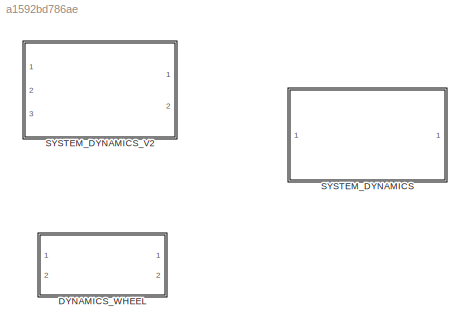
MODEL slx_a1592bd786ae
KIND library
CONFIG AbsTol = auto
CONFIG EnableMultiTasking = off
CONFIG FixedStep = auto
CONFIG MaxStep = auto
CONFIG MinStep = auto
CONFIG RelTol = 1e-3
CONFIG SampleTimeConstraint = Unconstrained
CONFIG SolverName = VariableStepAuto
CONFIG StartTime = 0.0
CONFIG StopTime = 10.0
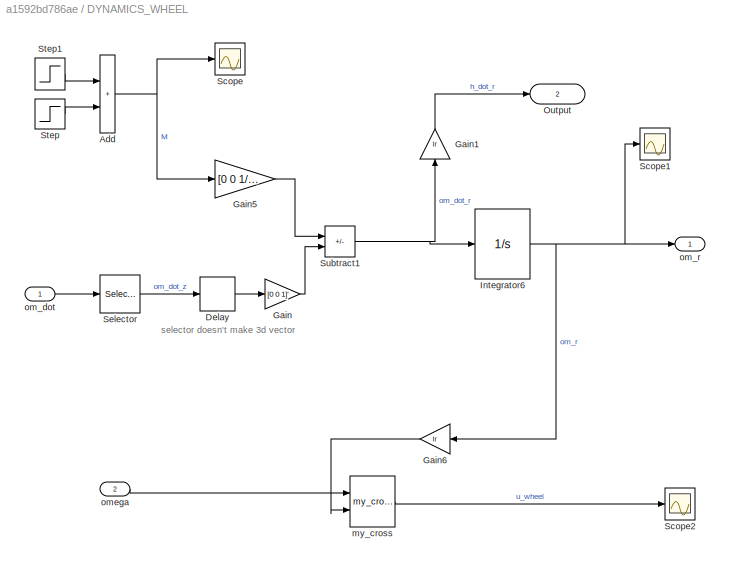
BLOCK [SubSystem] DYNAMICS_WHEEL
  Ports = [2, 2]
  RequestExecContextInheritance = off
BLOCK [Sum] DYNAMICS_WHEEL/Add
  IconShape = rectangular
  Ports = [2, 1]
BLOCK [Delay] DYNAMICS_WHEEL/Delay
  DelayLength = 1
  InputPortMap = u0
  Ports = [1, 1]
BLOCK [Gain] DYNAMICS_WHEEL/Gain
  Gain = [0 0 1]'
BLOCK [Gain] DYNAMICS_WHEEL/Gain1
  Gain = Ir
  NameLocation = right
BLOCK [Gain] DYNAMICS_WHEEL/Gain5
  Gain = [0 0 1/Ir]'
BLOCK [Gain] DYNAMICS_WHEEL/Gain6
  Gain = Ir
BLOCK [Integrator] DYNAMICS_WHEEL/Integrator6
  InitialCondition = [0 0 0]'
  Ports = [1, 1]
BLOCK [Outport] DYNAMICS_WHEEL/Output
  IconDisplay = Signal name
  Port = 2
BLOCK [Scope] DYNAMICS_WHEEL/Scope
  Floating = off
  NumInputPorts = 1
  Ports = [1]
  ScopeSpecificationString = Simulink.scopes.TimeScopeBlockCfg('CurrentConfiguration', extmgr.ConfigurationSet(extmgr.Configuration('Core','General UI',true),extmgr.Configuration('Core','Source UI',true),extmgr.Configuration('Sources','WiredSimulink',true,'DataLoggingVariableName','ScopeData2'),extmgr.Configuration('Visuals','Time Domain',true,'SerializedDisplays',{struct('MinYLimReal','-0.00005','MaxYLimReal','0.00045','YLab...<+1388ch>
BLOCK [Scope] DYNAMICS_WHEEL/Scope1
  Floating = off
  NumInputPorts = 1
  Ports = [1]
  ScopeSpecificationString = Simulink.scopes.TimeScopeBlockCfg('CurrentConfiguration', extmgr.ConfigurationSet(extmgr.Configuration('Core','General UI',true),extmgr.Configuration('Core','Source UI',true),extmgr.Configuration('Sources','WiredSimulink',true,'DataLoggingVariableName','ScopeData3'),extmgr.Configuration('Visuals','Time Domain',true,'SerializedDisplays',{struct('MinYLimReal','-0.05551','MaxYLimReal','0.49956','YLab...<+1451ch>
BLOCK [Scope] DYNAMICS_WHEEL/Scope2
  Floating = off
  NumInputPorts = 1
  Ports = [1]
  ScopeSpecificationString = Simulink.scopes.TimeScopeBlockCfg('CurrentConfiguration', extmgr.ConfigurationSet(extmgr.Configuration('Core','General UI',true),extmgr.Configuration('Core','Source UI',true),extmgr.Configuration('Sources','WiredSimulink',true,'DataLoggingVariableName','ScopeData1'),extmgr.Configuration('Visuals','Time Domain',true,'SerializedDisplays',{struct('MinYLimReal','-0.0000004','MaxYLimReal','0.0000004','...<+1479ch>
BLOCK [Selector] DYNAMICS_WHEEL/Selector
  IndexOptions = Index vector (dialog)
  Indices = 3
  InputPortWidth = 3
  OutputSizes = 1
  Ports = [1, 1]
BLOCK [Step] DYNAMICS_WHEEL/Step
  After = -T_w
  SampleTime = 0
  Time = 255
BLOCK [Step] DYNAMICS_WHEEL/Step1
  After = T_w
  SampleTime = 0
  Time = 250
BLOCK [Sum] DYNAMICS_WHEEL/Subtract1
  IconShape = rectangular
  Inputs = +-
  Ports = [2, 1]
BLOCK [Reference] DYNAMICS_WHEEL/my_cross  REF=my_math_ops/my_cross  (lib defined in slx_67cfba16120e)
  Ports = [2, 1]
  SourceBlock = my_math_ops/my_cross
  SourceType = SubSystem
BLOCK [Inport] DYNAMICS_WHEEL/om_dot
BLOCK [Outport] DYNAMICS_WHEEL/om_r
BLOCK [Inport] DYNAMICS_WHEEL/omega
  Port = 2
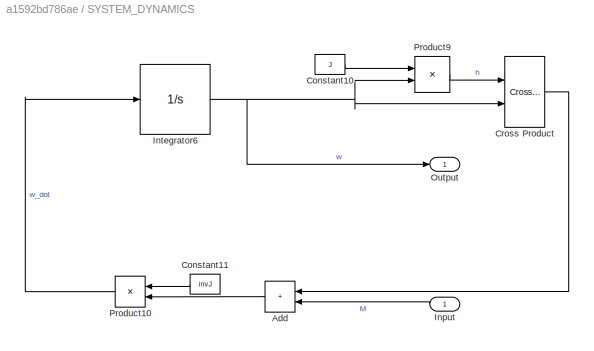
BLOCK [SubSystem] SYSTEM_DYNAMICS
  Ports = [1, 1]
  RequestExecContextInheritance = off
BLOCK [Sum] SYSTEM_DYNAMICS/Add
  IconShape = rectangular
  Ports = [2, 1]
BLOCK [Constant] SYSTEM_DYNAMICS/Constant10
  Value = J
BLOCK [Constant] SYSTEM_DYNAMICS/Constant11
  Value = invJ
BLOCK [Reference] SYSTEM_DYNAMICS/Cross Product  REF=matrix_library/Cross Product
  Ports = [2, 1]
  SourceBlock = matrix_library/Cross Product
  SourceProductBaseCode = SL
  SourceType = CrossProduct
BLOCK [Inport] SYSTEM_DYNAMICS/Input
  IconDisplay = Signal name
BLOCK [Integrator] SYSTEM_DYNAMICS/Integrator6
  InitialCondition = omega0
  Ports = [1, 1]
BLOCK [Outport] SYSTEM_DYNAMICS/Output
  IconDisplay = Signal name
BLOCK [Product] SYSTEM_DYNAMICS/Product10
  Multiplication = Matrix(*)
  Ports = [2, 1]
BLOCK [Product] SYSTEM_DYNAMICS/Product9
  Multiplication = Matrix(*)
  Ports = [2, 1]
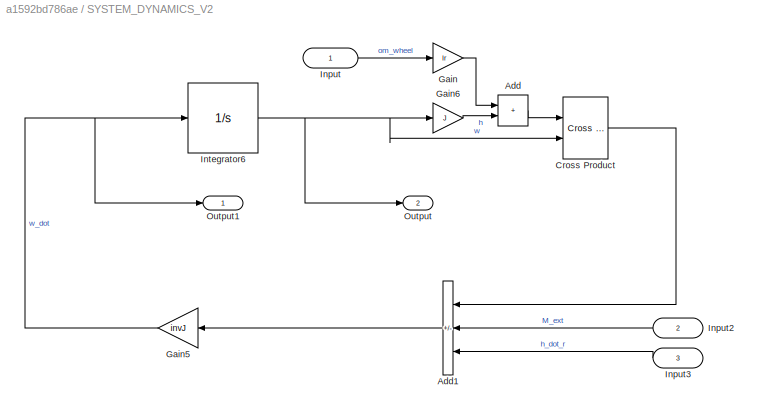
BLOCK [SubSystem] SYSTEM_DYNAMICS_V2
  Ports = [3, 2]
  RequestExecContextInheritance = off
BLOCK [Sum] SYSTEM_DYNAMICS_V2/Add
  IconShape = rectangular
  Ports = [2, 1]
BLOCK [Sum] SYSTEM_DYNAMICS_V2/Add1
  IconShape = rectangular
  Inputs = ++-
  Ports = [3, 1]
BLOCK [Reference] SYSTEM_DYNAMICS_V2/Cross Product  REF=matrix_library/Cross Product
  Ports = [2, 1]
  SourceBlock = matrix_library/Cross Product
  SourceProductBaseCode = SL
  SourceType = CrossProduct
BLOCK [Gain] SYSTEM_DYNAMICS_V2/Gain
  Gain = Ir
BLOCK [Gain] SYSTEM_DYNAMICS_V2/Gain5
  Gain = invJ
  Multiplication = Matrix(K*u)
BLOCK [Gain] SYSTEM_DYNAMICS_V2/Gain6
  Gain = J
  Multiplication = Matrix(K*u)
BLOCK [Inport] SYSTEM_DYNAMICS_V2/Input
  IconDisplay = Signal name
BLOCK [Inport] SYSTEM_DYNAMICS_V2/Input2
  IconDisplay = Signal name
  Port = 2
BLOCK [Inport] SYSTEM_DYNAMICS_V2/Input3
  IconDisplay = Signal name
  Port = 3
BLOCK [Integrator] SYSTEM_DYNAMICS_V2/Integrator6
  InitialCondition = omega0
  Ports = [1, 1]
BLOCK [Outport] SYSTEM_DYNAMICS_V2/Output
  IconDisplay = Signal name
  Port = 2
BLOCK [Outport] SYSTEM_DYNAMICS_V2/Output1
  IconDisplay = Signal name
ANNOTATION DYNAMICS_WHEEL: selector doesn't make 3d vector
NET DYNAMICS_WHEEL/Add:1 -> DYNAMICS_WHEEL/Gain5:1, DYNAMICS_WHEEL/Scope:1
LINE DYNAMICS_WHEEL/Delay:1 -> DYNAMICS_WHEEL/Gain:1
LINE DYNAMICS_WHEEL/Gain1:1 -> DYNAMICS_WHEEL/Output:1
LINE DYNAMICS_WHEEL/Gain5:1 -> DYNAMICS_WHEEL/Subtract1:1
LINE DYNAMICS_WHEEL/Gain6:1 -> DYNAMICS_WHEEL/my_cross:2
LINE DYNAMICS_WHEEL/Gain:1 -> DYNAMICS_WHEEL/Subtract1:2
NET DYNAMICS_WHEEL/Integrator6:1 -> DYNAMICS_WHEEL/Gain6:1, DYNAMICS_WHEEL/Scope1:1, DYNAMICS_WHEEL/om_r:1
LINE DYNAMICS_WHEEL/Selector:1 -> DYNAMICS_WHEEL/Delay:1
LINE DYNAMICS_WHEEL/Step1:1 -> DYNAMICS_WHEEL/Add:1
LINE DYNAMICS_WHEEL/Step:1 -> DYNAMICS_WHEEL/Add:2
NET DYNAMICS_WHEEL/Subtract1:1 -> DYNAMICS_WHEEL/Gain1:1, DYNAMICS_WHEEL/Integrator6:1
LINE DYNAMICS_WHEEL/my_cross:1 -> DYNAMICS_WHEEL/Scope2:1
LINE DYNAMICS_WHEEL/om_dot:1 -> DYNAMICS_WHEEL/Selector:1
LINE DYNAMICS_WHEEL/omega:1 -> DYNAMICS_WHEEL/my_cross:1
LINE SYSTEM_DYNAMICS/Add:1 -> SYSTEM_DYNAMICS/Product10:2
LINE SYSTEM_DYNAMICS/Constant10:1 -> SYSTEM_DYNAMICS/Product9:1
LINE SYSTEM_DYNAMICS/Constant11:1 -> SYSTEM_DYNAMICS/Product10:1
LINE SYSTEM_DYNAMICS/Cross Product:1 -> SYSTEM_DYNAMICS/Add:1
LINE SYSTEM_DYNAMICS/Input:1 -> SYSTEM_DYNAMICS/Add:2
NET SYSTEM_DYNAMICS/Integrator6:1 -> SYSTEM_DYNAMICS/Cross Product:2, SYSTEM_DYNAMICS/Output:1, SYSTEM_DYNAMICS/Product9:2
LINE SYSTEM_DYNAMICS/Product10:1 -> SYSTEM_DYNAMICS/Integrator6:1
LINE SYSTEM_DYNAMICS/Product9:1 -> SYSTEM_DYNAMICS/Cross Product:1
LINE SYSTEM_DYNAMICS_V2/Add1:1 -> SYSTEM_DYNAMICS_V2/Gain5:1
LINE SYSTEM_DYNAMICS_V2/Add:1 -> SYSTEM_DYNAMICS_V2/Cross Product:1
LINE SYSTEM_DYNAMICS_V2/Cross Product:1 -> SYSTEM_DYNAMICS_V2/Add1:1
NET SYSTEM_DYNAMICS_V2/Gain5:1 -> SYSTEM_DYNAMICS_V2/Integrator6:1, SYSTEM_DYNAMICS_V2/Output1:1
LINE SYSTEM_DYNAMICS_V2/Gain6:1 -> SYSTEM_DYNAMICS_V2/Add:2
LINE SYSTEM_DYNAMICS_V2/Gain:1 -> SYSTEM_DYNAMICS_V2/Add:1
LINE SYSTEM_DYNAMICS_V2/Input2:1 -> SYSTEM_DYNAMICS_V2/Add1:2
LINE SYSTEM_DYNAMICS_V2/Input3:1 -> SYSTEM_DYNAMICS_V2/Add1:3
LINE SYSTEM_DYNAMICS_V2/Input:1 -> SYSTEM_DYNAMICS_V2/Gain:1
NET SYSTEM_DYNAMICS_V2/Integrator6:1 -> SYSTEM_DYNAMICS_V2/Cross Product:2, SYSTEM_DYNAMICS_V2/Gain6:1, SYSTEM_DYNAMICS_V2/Output:1
note: NET lines group one-source signal fan-out (src -> all destinations, sorted); 1:1 wires keep LINE
